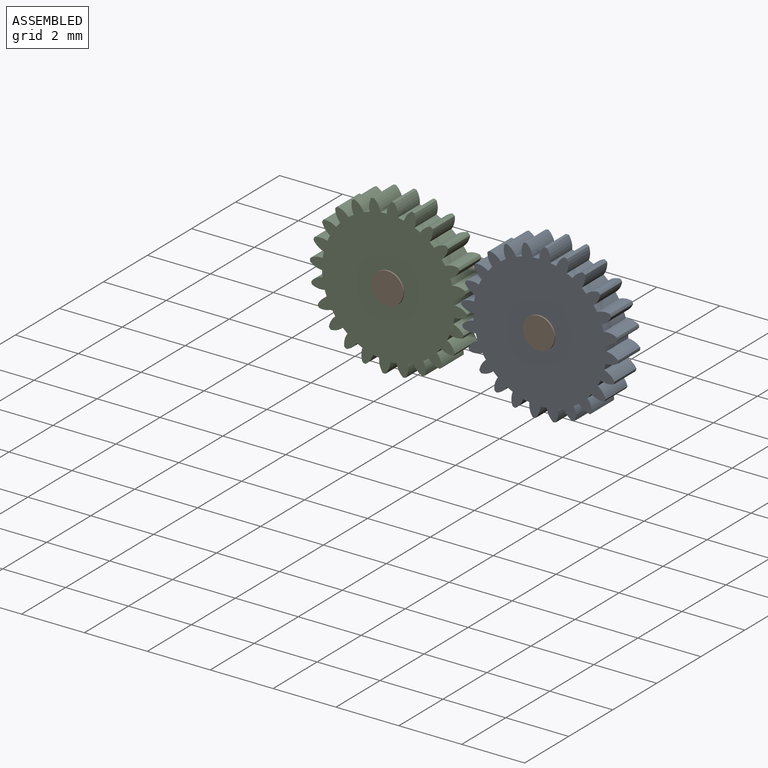
[diagram: assembled view]
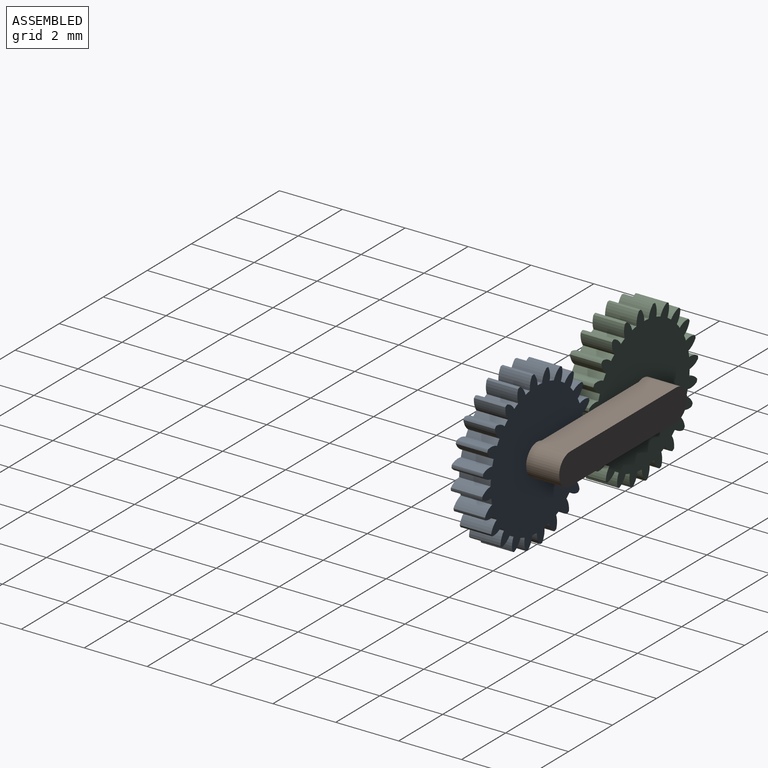
[diagram: assembled view, second angle]
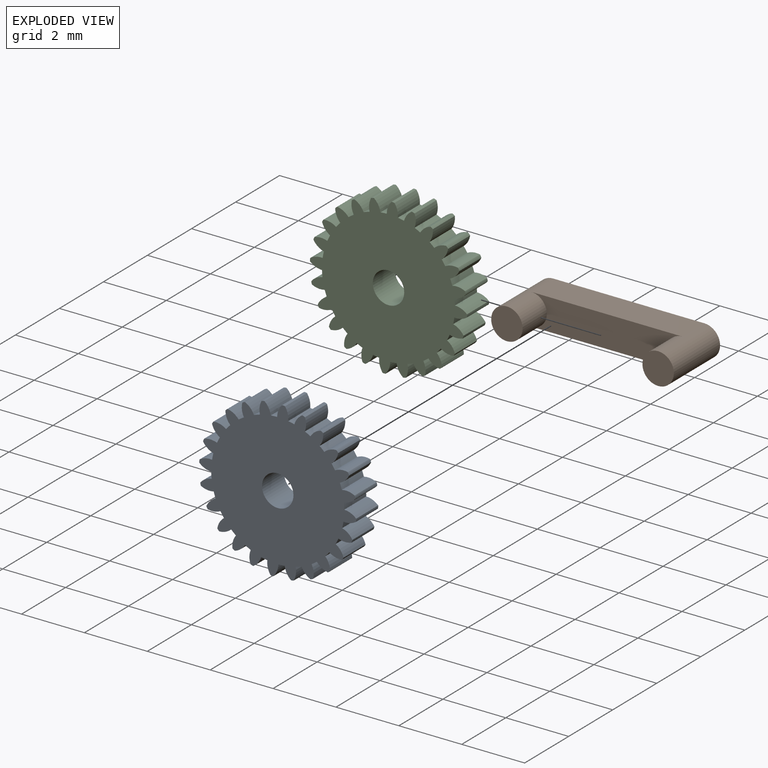
[diagram: exploded view]
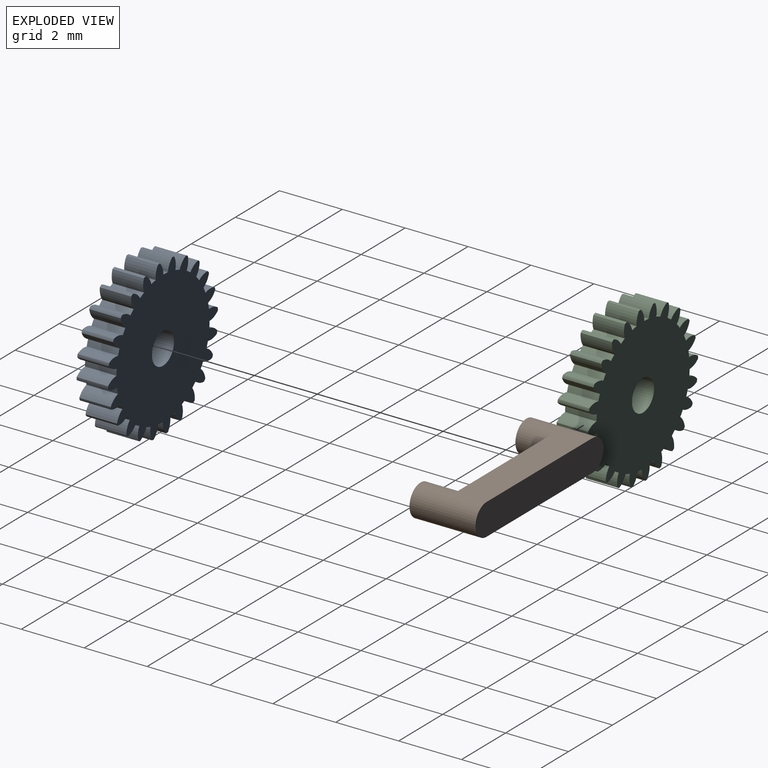
[diagram: exploded view, second angle]
ASSEMBLY  parts=3 mates=2
PART A: 99 faces, bbox 5x1x5 mm
  f0: cylinder r=2.12mm len=1mm, axis (0,1,0), area 0.2mm2, adj f28,f29,f68,f71
  f1: cylinder r=2.12mm len=1mm, axis (0,1,0), area 0.2mm2, adj f28,f29,f70,f74
  f2: cylinder r=2.12mm len=1mm, axis (0,1,0), area 0.2mm2, adj f28,f29,f73,f77
  f3: cylinder r=2.12mm len=1mm, axis (0,1,0), area 0.2mm2, adj f28,f29,f76,f80
  f4: cylinder r=2.12mm len=1mm, axis (0,1,0), area 0.2mm2, adj f28,f29,f79,f83
  f5: cylinder r=2.12mm len=1mm, axis (0,1,0), area 0.2mm2, adj f28,f29,f82,f86
  f6: cylinder r=2.12mm len=1mm, axis (0,1,0), area 0.2mm2, adj f28,f29,f85,f89
  f7: cylinder r=2.12mm len=1mm, axis (0,1,0), area 0.2mm2, adj f28,f29,f88,f92
  f8: cylinder r=2.12mm len=1mm, axis (0,1,0), area 0.2mm2, adj f28,f29,f91,f95
  f9: cylinder r=2.12mm len=1mm, axis (0,1,0), area 0.2mm2, adj f28,f29,f94,f98
  f10: cylinder r=2.12mm len=1mm, axis (0,1,0), area 0.2mm2, adj f28,f29,f32,f96
  f11: cylinder r=2.12mm len=1mm, axis (0,1,0), area 0.2mm2, adj f28,f29,f31,f35
  f12: cylinder r=2.12mm len=1mm, axis (0,1,0), area 0.2mm2, adj f28,f29,f34,f38
  f13: cylinder r=2.12mm len=1mm, axis (0,1,0), area 0.2mm2, adj f28,f29,f37,f41
  f14: cylinder r=2.12mm len=1mm, axis (0,1,0), area 0.2mm2, adj f28,f29,f40,f44
  f15: cylinder r=2.12mm len=1mm, axis (0,1,0), area 0.2mm2, adj f28,f29,f43,f47
  f16: cylinder r=2.12mm len=1mm, axis (0,1,0), area 0.2mm2, adj f28,f29,f46,f50
  f17: cylinder r=2.12mm len=1mm, axis (0,1,0), area 0.2mm2, adj f28,f29,f49,f53
  f18: cylinder r=2.12mm len=1mm, axis (0,1,0), area 0.2mm2, adj f28,f29,f52,f56
  f19: cylinder r=2.12mm len=1mm, axis (0,1,0), area 0.2mm2, adj f28,f29,f55,f59
  f20: cylinder r=2.12mm len=1mm, axis (0,1,0), area 0.2mm2, adj f28,f29,f58,f62
  f21: cylinder r=2.12mm len=1mm, axis (0,1,0), area 0.2mm2, adj f28,f29,f61,f65
  f22: cylinder r=2.12mm len=1mm, axis (0,1,0), area 0.2mm2, adj f25,f28,f29,f64
  f23: cylinder r=0.57mm len=1mm, axis (0,1,0), area 0.4mm2, adj f24,f26,f28,f29
  f24: cylinder r=0.25mm len=1mm, axis (0,1,0), area 0.1mm2, adj f23,f25,f28,f29
  f25: cylinder r=0.57mm len=1mm, axis (0,1,0), area 0.4mm2, adj f22,f24,f28,f29
  f26: cylinder r=2.12mm len=1mm, axis (0,1,0), area 0.2mm2, adj f23,f28,f29,f67
  f27: cylinder r=0.5mm len=1mm, axis (0,1,0), area 3.1mm2, adj f28,f29
  f28: plane 4.99x4.99mm, normal (0,-1,0), area 15.8mm2, adj f0,f1,f2,f3,f4,f5,f6,f7
  f29: plane 4.99x4.99mm, normal (0,1,0), area 15.8mm2, adj f0,f1,f2,f3,f4,f5,f6,f7
  f30: cylinder r=0.25mm len=1mm, axis (0,1,0), area 0.1mm2, adj f28,f29,f31,f32
  f31: cylinder r=0.57mm len=1mm, axis (0,1,0), area 0.4mm2, adj f11,f28,f29,f30
  f32: cylinder r=0.57mm len=1mm, axis (0,1,0), area 0.4mm2, adj f10,f28,f29,f30
  f33: cylinder r=0.25mm len=1mm, axis (0,1,0), area 0.1mm2, adj f28,f29,f34,f35
  f34: cylinder r=0.57mm len=1mm, axis (0,1,0), area 0.4mm2, adj f12,f28,f29,f33
  f35: cylinder r=0.57mm len=1mm, axis (0,1,0), area 0.4mm2, adj f11,f28,f29,f33
  f36: cylinder r=0.25mm len=1mm, axis (0,1,0), area 0.1mm2, adj f28,f29,f37,f38
  f37: cylinder r=0.57mm len=1mm, axis (0,1,0), area 0.4mm2, adj f13,f28,f29,f36
  f38: cylinder r=0.57mm len=1mm, axis (0,1,0), area 0.4mm2, adj f12,f28,f29,f36
  f39: cylinder r=0.25mm len=1mm, axis (0,1,0), area 0.1mm2, adj f28,f29,f40,f41
  f40: cylinder r=0.57mm len=1mm, axis (0,1,0), area 0.4mm2, adj f14,f28,f29,f39
  f41: cylinder r=0.57mm len=1mm, axis (0,1,0), area 0.4mm2, adj f13,f28,f29,f39
  f42: cylinder r=0.25mm len=1mm, axis (0,1,0), area 0.1mm2, adj f28,f29,f43,f44
  f43: cylinder r=0.57mm len=1mm, axis (0,1,0), area 0.4mm2, adj f15,f28,f29,f42
  f44: cylinder r=0.57mm len=1mm, axis (0,1,0), area 0.4mm2, adj f14,f28,f29,f42
  f45: cylinder r=0.25mm len=1mm, axis (0,1,0), area 0.1mm2, adj f28,f29,f46,f47
  f46: cylinder r=0.57mm len=1mm, axis (0,1,0), area 0.4mm2, adj f16,f28,f29,f45
  f47: cylinder r=0.57mm len=1mm, axis (0,1,0), area 0.4mm2, adj f15,f28,f29,f45
  f48: cylinder r=0.25mm len=1mm, axis (0,1,0), area 0.1mm2, adj f28,f29,f49,f50
  f49: cylinder r=0.57mm len=1mm, axis (0,1,0), area 0.4mm2, adj f17,f28,f29,f48
  f50: cylinder r=0.57mm len=1mm, axis (0,1,0), area 0.4mm2, adj f16,f28,f29,f48
  f51: cylinder r=0.25mm len=1mm, axis (0,1,0), area 0.1mm2, adj f28,f29,f52,f53
  f52: cylinder r=0.57mm len=1mm, axis (0,1,0), area 0.4mm2, adj f18,f28,f29,f51
  f53: cylinder r=0.57mm len=1mm, axis (0,1,0), area 0.4mm2, adj f17,f28,f29,f51
  f54: cylinder r=0.25mm len=1mm, axis (0,1,0), area 0.1mm2, adj f28,f29,f55,f56
  f55: cylinder r=0.57mm len=1mm, axis (0,1,0), area 0.4mm2, adj f19,f28,f29,f54
  f56: cylinder r=0.57mm len=1mm, axis (0,1,0), area 0.4mm2, adj f18,f28,f29,f54
  f57: cylinder r=0.25mm len=1mm, axis (0,1,0), area 0.1mm2, adj f28,f29,f58,f59
  f58: cylinder r=0.57mm len=1mm, axis (0,1,0), area 0.4mm2, adj f20,f28,f29,f57
  f59: cylinder r=0.57mm len=1mm, axis (0,1,0), area 0.4mm2, adj f19,f28,f29,f57
  f60: cylinder r=0.25mm len=1mm, axis (0,1,0), area 0.1mm2, adj f28,f29,f61,f62
  f61: cylinder r=0.57mm len=1mm, axis (0,1,0), area 0.4mm2, adj f21,f28,f29,f60
  f62: cylinder r=0.57mm len=1mm, axis (0,1,0), area 0.4mm2, adj f20,f28,f29,f60
  f63: cylinder r=0.25mm len=1mm, axis (0,1,0), area 0.1mm2, adj f28,f29,f64,f65
  f64: cylinder r=0.57mm len=1mm, axis (0,1,0), area 0.4mm2, adj f22,f28,f29,f63
  f65: cylinder r=0.57mm len=1mm, axis (0,1,0), area 0.4mm2, adj f21,f28,f29,f63
  f66: cylinder r=0.25mm len=1mm, axis (0,1,0), area 0.1mm2, adj f28,f29,f67,f68
  f67: cylinder r=0.57mm len=1mm, axis (0,1,0), area 0.4mm2, adj f26,f28,f29,f66
  f68: cylinder r=0.57mm len=1mm, axis (0,1,0), area 0.4mm2, adj f0,f28,f29,f66
  f69: cylinder r=0.25mm len=1mm, axis (0,1,0), area 0.1mm2, adj f28,f29,f70,f71
  f70: cylinder r=0.57mm len=1mm, axis (0,1,0), area 0.4mm2, adj f1,f28,f29,f69
  f71: cylinder r=0.57mm len=1mm, axis (0,1,0), area 0.4mm2, adj f0,f28,f29,f69
  f72: cylinder r=0.25mm len=1mm, axis (0,1,0), area 0.1mm2, adj f28,f29,f73,f74
  f73: cylinder r=0.57mm len=1mm, axis (0,1,0), area 0.4mm2, adj f2,f28,f29,f72
  f74: cylinder r=0.57mm len=1mm, axis (0,1,0), area 0.4mm2, adj f1,f28,f29,f72
  f75: cylinder r=0.25mm len=1mm, axis (0,1,0), area 0.1mm2, adj f28,f29,f76,f77
  f76: cylinder r=0.57mm len=1mm, axis (0,1,0), area 0.4mm2, adj f3,f28,f29,f75
  f77: cylinder r=0.57mm len=1mm, axis (0,1,0), area 0.4mm2, adj f2,f28,f29,f75
  f78: cylinder r=0.25mm len=1mm, axis (0,1,0), area 0.1mm2, adj f28,f29,f79,f80
  f79: cylinder r=0.57mm len=1mm, axis (0,1,0), area 0.4mm2, adj f4,f28,f29,f78
  f80: cylinder r=0.57mm len=1mm, axis (0,1,0), area 0.4mm2, adj f3,f28,f29,f78
  f81: cylinder r=0.25mm len=1mm, axis (0,1,0), area 0.1mm2, adj f28,f29,f82,f83
  f82: cylinder r=0.57mm len=1mm, axis (0,1,0), area 0.4mm2, adj f5,f28,f29,f81
  f83: cylinder r=0.57mm len=1mm, axis (0,1,0), area 0.4mm2, adj f4,f28,f29,f81
  f84: cylinder r=0.25mm len=1mm, axis (0,1,0), area 0.1mm2, adj f28,f29,f85,f86
  f85: cylinder r=0.57mm len=1mm, axis (0,1,0), area 0.4mm2, adj f6,f28,f29,f84
  f86: cylinder r=0.57mm len=1mm, axis (0,1,0), area 0.4mm2, adj f5,f28,f29,f84
  f87: cylinder r=0.25mm len=1mm, axis (0,1,0), area 0.1mm2, adj f28,f29,f88,f89
  f88: cylinder r=0.57mm len=1mm, axis (0,1,0), area 0.4mm2, adj f7,f28,f29,f87
  f89: cylinder r=0.57mm len=1mm, axis (0,1,0), area 0.4mm2, adj f6,f28,f29,f87
  f90: cylinder r=0.25mm len=1mm, axis (0,1,0), area 0.1mm2, adj f28,f29,f91,f92
  f91: cylinder r=0.57mm len=1mm, axis (0,1,0), area 0.4mm2, adj f8,f28,f29,f90
  f92: cylinder r=0.57mm len=1mm, axis (0,1,0), area 0.4mm2, adj f7,f28,f29,f90
  f93: cylinder r=0.25mm len=1mm, axis (0,1,0), area 0.1mm2, adj f28,f29,f94,f95
  f94: cylinder r=0.57mm len=1mm, axis (0,1,0), area 0.4mm2, adj f9,f28,f29,f93
  f95: cylinder r=0.57mm len=1mm, axis (0,1,0), area 0.4mm2, adj f8,f28,f29,f93
  f96: cylinder r=0.57mm len=1mm, axis (0,1,0), area 0.4mm2, adj f10,f28,f29,f97
  f97: cylinder r=0.25mm len=1mm, axis (0,1,0), area 0.1mm2, adj f28,f29,f96,f98
  f98: cylinder r=0.57mm len=1mm, axis (0,1,0), area 0.4mm2, adj f9,f28,f29,f97
PART B: 8 faces, bbox 5.8x2.1x1 mm
  f0: plane 4.81x1mm, normal (0,0,1), area 4.8mm2, adj f2,f3,f4,f6
  f1: plane 4.81x1mm, normal (0,0,-1), area 4.8mm2, adj f2,f3,f4,f6
  f2: plane 4.81x1mm, normal (0,-1,0), area 4mm2, adj f0,f1,f4,f6
  f3: plane 5.81x1mm, normal (0,1,0), area 5.6mm2, adj f0,f1,f4,f6
  f4: cylinder r=0.5mm len=2.1mm, axis (0,1,0), area 5mm2, adj f0,f1,f2,f3,f5
  f5: plane 1x1mm, normal (0,-1,0), area 0.8mm2, adj f4
  f6: cylinder r=0.5mm len=2.1mm, axis (0,1,0), area 5mm2, adj f0,f1,f2,f3,f7
  f7: plane 1x1mm, normal (0,-1,0), area 0.8mm2, adj f6
PART C: 99 faces, bbox 5x1x5 mm
  f0: cylinder r=2.12mm len=1mm, axis (0,1,0), area 0.2mm2, adj f25,f28,f29,f65
  f1: cylinder r=2.12mm len=1mm, axis (0,1,0), area 0.2mm2, adj f28,f29,f62,f64
  f2: cylinder r=2.12mm len=1mm, axis (0,1,0), area 0.2mm2, adj f28,f29,f59,f61
  f3: cylinder r=2.12mm len=1mm, axis (0,1,0), area 0.2mm2, adj f28,f29,f56,f58
  f4: cylinder r=2.12mm len=1mm, axis (0,1,0), area 0.2mm2, adj f28,f29,f53,f55
  f5: cylinder r=2.12mm len=1mm, axis (0,1,0), area 0.2mm2, adj f28,f29,f50,f52
  f6: cylinder r=2.12mm len=1mm, axis (0,1,0), area 0.2mm2, adj f28,f29,f47,f49
  f7: cylinder r=2.12mm len=1mm, axis (0,1,0), area 0.2mm2, adj f28,f29,f44,f46
  f8: cylinder r=2.12mm len=1mm, axis (0,1,0), area 0.2mm2, adj f28,f29,f41,f43
  f9: cylinder r=2.12mm len=1mm, axis (0,1,0), area 0.2mm2, adj f28,f29,f38,f40
  f10: cylinder r=2.12mm len=1mm, axis (0,1,0), area 0.2mm2, adj f28,f29,f35,f37
  f11: cylinder r=2.12mm len=1mm, axis (0,1,0), area 0.2mm2, adj f28,f29,f32,f34
  f12: cylinder r=2.12mm len=1mm, axis (0,1,0), area 0.2mm2, adj f28,f29,f31,f96
  f13: cylinder r=2.12mm len=1mm, axis (0,1,0), area 0.2mm2, adj f28,f29,f95,f98
  f14: cylinder r=2.12mm len=1mm, axis (0,1,0), area 0.2mm2, adj f28,f29,f92,f94
  f15: cylinder r=2.12mm len=1mm, axis (0,1,0), area 0.2mm2, adj f28,f29,f89,f91
  f16: cylinder r=2.12mm len=1mm, axis (0,1,0), area 0.2mm2, adj f28,f29,f86,f88
  f17: cylinder r=2.12mm len=1mm, axis (0,1,0), area 0.2mm2, adj f28,f29,f83,f85
  f18: cylinder r=2.12mm len=1mm, axis (0,1,0), area 0.2mm2, adj f28,f29,f80,f82
  f19: cylinder r=2.12mm len=1mm, axis (0,1,0), area 0.2mm2, adj f28,f29,f77,f79
  f20: cylinder r=2.12mm len=1mm, axis (0,1,0), area 0.2mm2, adj f28,f29,f74,f76
  f21: cylinder r=2.12mm len=1mm, axis (0,1,0), area 0.2mm2, adj f28,f29,f71,f73
  f22: cylinder r=2.12mm len=1mm, axis (0,1,0), area 0.2mm2, adj f28,f29,f67,f70
  f23: cylinder r=0.57mm len=1mm, axis (0,1,0), area 0.4mm2, adj f24,f26,f28,f29
  f24: cylinder r=0.25mm len=1mm, axis (0,1,0), area 0.1mm2, adj f23,f25,f28,f29
  f25: cylinder r=0.57mm len=1mm, axis (0,1,0), area 0.4mm2, adj f0,f24,f28,f29
  f26: cylinder r=2.12mm len=1mm, axis (0,1,0), area 0.2mm2, adj f23,f28,f29,f68
  f27: cylinder r=0.5mm len=1mm, axis (0,1,0), area 3.1mm2, adj f28,f29
  f28: plane 4.99x4.99mm, normal (0,-1,0), area 15.8mm2, adj f0,f1,f2,f3,f4,f5,f6,f7
  f29: plane 4.99x4.99mm, normal (0,1,0), area 15.8mm2, adj f0,f1,f2,f3,f4,f5,f6,f7
  f30: cylinder r=0.25mm len=1mm, axis (0,1,0), area 0.1mm2, adj f28,f29,f31,f32
  f31: cylinder r=0.57mm len=1mm, axis (0,1,0), area 0.4mm2, adj f12,f28,f29,f30
  f32: cylinder r=0.57mm len=1mm, axis (0,1,0), area 0.4mm2, adj f11,f28,f29,f30
  f33: cylinder r=0.25mm len=1mm, axis (0,1,0), area 0.1mm2, adj f28,f29,f34,f35
  f34: cylinder r=0.57mm len=1mm, axis (0,1,0), area 0.4mm2, adj f11,f28,f29,f33
  f35: cylinder r=0.57mm len=1mm, axis (0,1,0), area 0.4mm2, adj f10,f28,f29,f33
  f36: cylinder r=0.25mm len=1mm, axis (0,1,0), area 0.1mm2, adj f28,f29,f37,f38
  f37: cylinder r=0.57mm len=1mm, axis (0,1,0), area 0.4mm2, adj f10,f28,f29,f36
  f38: cylinder r=0.57mm len=1mm, axis (0,1,0), area 0.4mm2, adj f9,f28,f29,f36
  f39: cylinder r=0.25mm len=1mm, axis (0,1,0), area 0.1mm2, adj f28,f29,f40,f41
  f40: cylinder r=0.57mm len=1mm, axis (0,1,0), area 0.4mm2, adj f9,f28,f29,f39
  f41: cylinder r=0.57mm len=1mm, axis (0,1,0), area 0.4mm2, adj f8,f28,f29,f39
  f42: cylinder r=0.25mm len=1mm, axis (0,1,0), area 0.1mm2, adj f28,f29,f43,f44
  f43: cylinder r=0.57mm len=1mm, axis (0,1,0), area 0.4mm2, adj f8,f28,f29,f42
  f44: cylinder r=0.57mm len=1mm, axis (0,1,0), area 0.4mm2, adj f7,f28,f29,f42
  f45: cylinder r=0.25mm len=1mm, axis (0,1,0), area 0.1mm2, adj f28,f29,f46,f47
  f46: cylinder r=0.57mm len=1mm, axis (0,1,0), area 0.4mm2, adj f7,f28,f29,f45
  f47: cylinder r=0.57mm len=1mm, axis (0,1,0), area 0.4mm2, adj f6,f28,f29,f45
  f48: cylinder r=0.25mm len=1mm, axis (0,1,0), area 0.1mm2, adj f28,f29,f49,f50
  f49: cylinder r=0.57mm len=1mm, axis (0,1,0), area 0.4mm2, adj f6,f28,f29,f48
  f50: cylinder r=0.57mm len=1mm, axis (0,1,0), area 0.4mm2, adj f5,f28,f29,f48
  f51: cylinder r=0.25mm len=1mm, axis (0,1,0), area 0.1mm2, adj f28,f29,f52,f53
  f52: cylinder r=0.57mm len=1mm, axis (0,1,0), area 0.4mm2, adj f5,f28,f29,f51
  f53: cylinder r=0.57mm len=1mm, axis (0,1,0), area 0.4mm2, adj f4,f28,f29,f51
  f54: cylinder r=0.25mm len=1mm, axis (0,1,0), area 0.1mm2, adj f28,f29,f55,f56
  f55: cylinder r=0.57mm len=1mm, axis (0,1,0), area 0.4mm2, adj f4,f28,f29,f54
  f56: cylinder r=0.57mm len=1mm, axis (0,1,0), area 0.4mm2, adj f3,f28,f29,f54
  f57: cylinder r=0.25mm len=1mm, axis (0,1,0), area 0.1mm2, adj f28,f29,f58,f59
  f58: cylinder r=0.57mm len=1mm, axis (0,1,0), area 0.4mm2, adj f3,f28,f29,f57
  f59: cylinder r=0.57mm len=1mm, axis (0,1,0), area 0.4mm2, adj f2,f28,f29,f57
  f60: cylinder r=0.25mm len=1mm, axis (0,1,0), area 0.1mm2, adj f28,f29,f61,f62
  f61: cylinder r=0.57mm len=1mm, axis (0,1,0), area 0.4mm2, adj f2,f28,f29,f60
  f62: cylinder r=0.57mm len=1mm, axis (0,1,0), area 0.4mm2, adj f1,f28,f29,f60
  f63: cylinder r=0.25mm len=1mm, axis (0,1,0), area 0.1mm2, adj f28,f29,f64,f65
  f64: cylinder r=0.57mm len=1mm, axis (0,1,0), area 0.4mm2, adj f1,f28,f29,f63
  f65: cylinder r=0.57mm len=1mm, axis (0,1,0), area 0.4mm2, adj f0,f28,f29,f63
  f66: cylinder r=0.25mm len=1mm, axis (0,1,0), area 0.1mm2, adj f28,f29,f67,f68
  f67: cylinder r=0.57mm len=1mm, axis (0,1,0), area 0.4mm2, adj f22,f28,f29,f66
  f68: cylinder r=0.57mm len=1mm, axis (0,1,0), area 0.4mm2, adj f26,f28,f29,f66
  f69: cylinder r=0.25mm len=1mm, axis (0,1,0), area 0.1mm2, adj f28,f29,f70,f71
  f70: cylinder r=0.57mm len=1mm, axis (0,1,0), area 0.4mm2, adj f22,f28,f29,f69
  f71: cylinder r=0.57mm len=1mm, axis (0,1,0), area 0.4mm2, adj f21,f28,f29,f69
  f72: cylinder r=0.25mm len=1mm, axis (0,1,0), area 0.1mm2, adj f28,f29,f73,f74
  f73: cylinder r=0.57mm len=1mm, axis (0,1,0), area 0.4mm2, adj f21,f28,f29,f72
  f74: cylinder r=0.57mm len=1mm, axis (0,1,0), area 0.4mm2, adj f20,f28,f29,f72
  f75: cylinder r=0.25mm len=1mm, axis (0,1,0), area 0.1mm2, adj f28,f29,f76,f77
  f76: cylinder r=0.57mm len=1mm, axis (0,1,0), area 0.4mm2, adj f20,f28,f29,f75
  f77: cylinder r=0.57mm len=1mm, axis (0,1,0), area 0.4mm2, adj f19,f28,f29,f75
  f78: cylinder r=0.25mm len=1mm, axis (0,1,0), area 0.1mm2, adj f28,f29,f79,f80
  f79: cylinder r=0.57mm len=1mm, axis (0,1,0), area 0.4mm2, adj f19,f28,f29,f78
  f80: cylinder r=0.57mm len=1mm, axis (0,1,0), area 0.4mm2, adj f18,f28,f29,f78
  f81: cylinder r=0.25mm len=1mm, axis (0,1,0), area 0.1mm2, adj f28,f29,f82,f83
  f82: cylinder r=0.57mm len=1mm, axis (0,1,0), area 0.4mm2, adj f18,f28,f29,f81
  f83: cylinder r=0.57mm len=1mm, axis (0,1,0), area 0.4mm2, adj f17,f28,f29,f81
  f84: cylinder r=0.25mm len=1mm, axis (0,1,0), area 0.1mm2, adj f28,f29,f85,f86
  f85: cylinder r=0.57mm len=1mm, axis (0,1,0), area 0.4mm2, adj f17,f28,f29,f84
  f86: cylinder r=0.57mm len=1mm, axis (0,1,0), area 0.4mm2, adj f16,f28,f29,f84
  f87: cylinder r=0.25mm len=1mm, axis (0,1,0), area 0.1mm2, adj f28,f29,f88,f89
  f88: cylinder r=0.57mm len=1mm, axis (0,1,0), area 0.4mm2, adj f16,f28,f29,f87
  f89: cylinder r=0.57mm len=1mm, axis (0,1,0), area 0.4mm2, adj f15,f28,f29,f87
  f90: cylinder r=0.25mm len=1mm, axis (0,1,0), area 0.1mm2, adj f28,f29,f91,f92
  f91: cylinder r=0.57mm len=1mm, axis (0,1,0), area 0.4mm2, adj f15,f28,f29,f90
  f92: cylinder r=0.57mm len=1mm, axis (0,1,0), area 0.4mm2, adj f14,f28,f29,f90
  f93: cylinder r=0.25mm len=1mm, axis (0,1,0), area 0.1mm2, adj f28,f29,f94,f95
  f94: cylinder r=0.57mm len=1mm, axis (0,1,0), area 0.4mm2, adj f14,f28,f29,f93
  f95: cylinder r=0.57mm len=1mm, axis (0,1,0), area 0.4mm2, adj f13,f28,f29,f93
  f96: cylinder r=0.57mm len=1mm, axis (0,1,0), area 0.4mm2, adj f12,f28,f29,f97
  f97: cylinder r=0.25mm len=1mm, axis (0,1,0), area 0.1mm2, adj f28,f29,f96,f98
  f98: cylinder r=0.57mm len=1mm, axis (0,1,0), area 0.4mm2, adj f13,f28,f29,f97
PLACE A rot(axis=(0.92,0,-0.39),180deg) t=(-3.12,1.27,12.78)mm
PLACE B t=(-2.02,3.32,3.13)mm fixed
PLACE C rot(axis=(-0.92,0,-0.39),180deg) t=(-4.42,1.27,9.22)mm
MATE revolute A.f27 <-> B.f6  axis (0,1,0) through (0.39,2.27,9.22)mm
MATE revolute C.f27 <-> B.f4  axis (0,1,0) through (-4.42,2.27,9.22)mm
